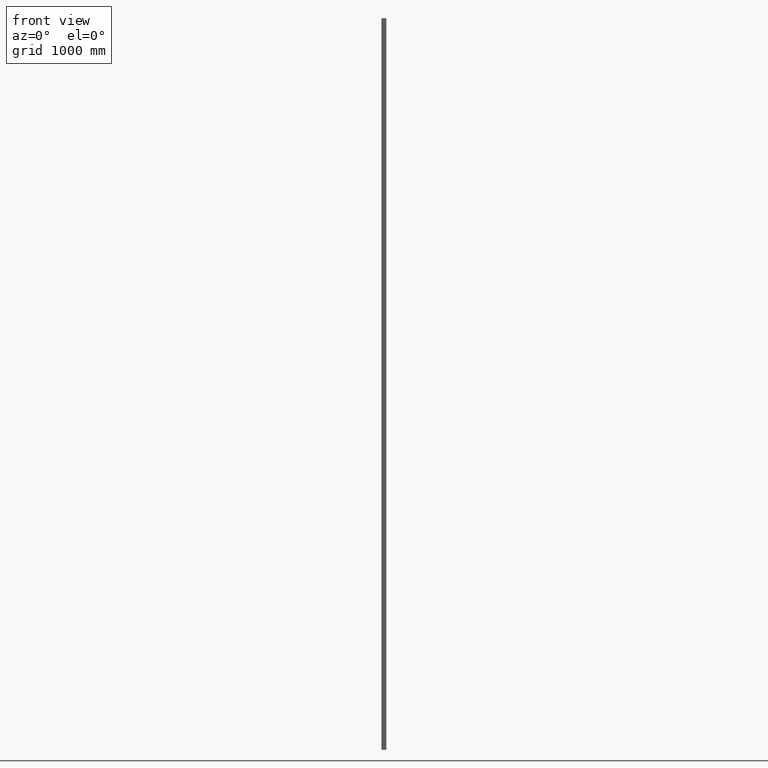
[diagram: clean part render]
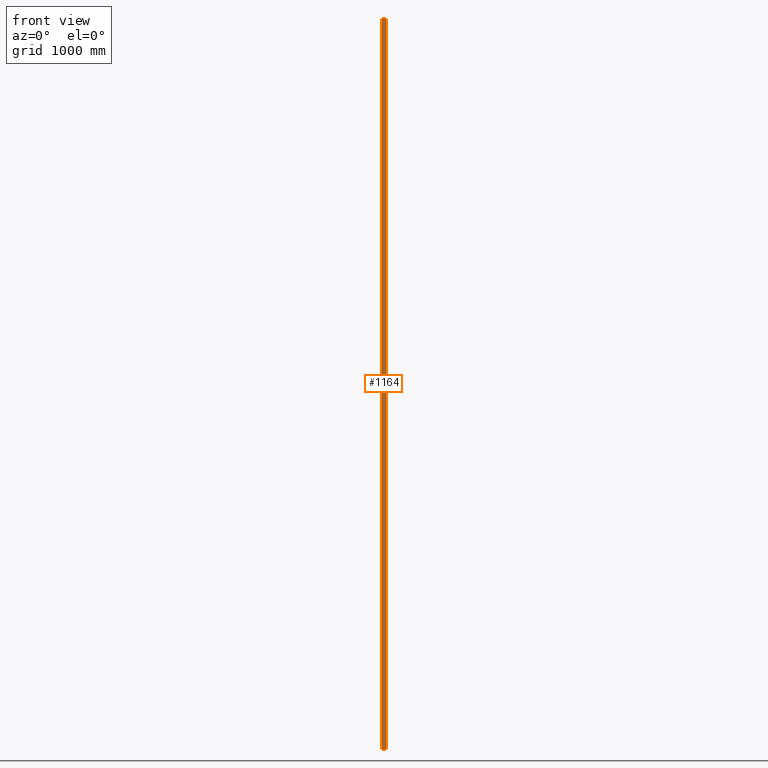
[diagram: same view with one face highlighted and labeled with its STEP entity id]
A machine part, front view. The second image highlights one B-rep face of the part: STEP entity #1164.
In plain terms, the highlighted planar face has unit normal (0, 1, -0).
Its self-contained STEP definition (entity closure, byte-faithful):
#895 = VERTEX_POINT ( 'NONE', #6147 ) ;
#1047 = LINE ( 'NONE', #8595, #7928 ) ;
#1164 = ADVANCED_FACE ( 'NONE', ( #3345 ), #12673, .F. ) ;
#1418 = VECTOR ( 'NONE', #4344, 1000.000000000000000 ) ;
#1791 = DIRECTION ( 'NONE',  ( -1.000000000000000000, 1.020425574104004122E-16, 0.000000000000000000 ) ) ;
#2044 = CARTESIAN_POINT ( 'NONE',  ( -16.99999999999999289, -20.00000000000000000, -3000.000000000000000 ) ) ;
#2084 = CARTESIAN_POINT ( 'NONE',  ( -16.99999999999999289, -20.00000000000000000, 3000.000000000000000 ) ) ;
#2161 = CARTESIAN_POINT ( 'NONE',  ( -16.99999999999999289, -20.00000000000000000, 3000.000000000000000 ) ) ;
#2600 = VERTEX_POINT ( 'NONE', #6311 ) ;
#3345 = FACE_OUTER_BOUND ( 'NONE', #10675, .T. ) ;
#4286 = DIRECTION ( 'NONE',  ( 1.000000000000000000, -1.020425574104004122E-16, 0.000000000000000000 ) ) ;
#4344 = DIRECTION ( 'NONE',  ( 1.000000000000000000, -1.020425574104004122E-16, 0.000000000000000000 ) ) ;
#6146 = DIRECTION ( 'NONE',  ( 1.020425574104004122E-16, 1.000000000000000000, -0.000000000000000000 ) ) ;
#6147 = CARTESIAN_POINT ( 'NONE',  ( 17.00000000000000355, -20.00000000000000355, 3000.000000000000000 ) ) ;
#6311 = CARTESIAN_POINT ( 'NONE',  ( -16.99999999999999289, -20.00000000000000000, 3000.000000000000000 ) ) ;
#6478 = VERTEX_POINT ( 'NONE', #11123 ) ;
#6810 = VERTEX_POINT ( 'NONE', #7158 ) ;
#7158 = CARTESIAN_POINT ( 'NONE',  ( -16.99999999999999289, -20.00000000000000000, -3000.000000000000000 ) ) ;
#7204 = CARTESIAN_POINT ( 'NONE',  ( -16.99999999999999289, -20.00000000000000000, 3000.000000000000000 ) ) ;
#7237 = LINE ( 'NONE', #2084, #9810 ) ;
#7383 = VECTOR ( 'NONE', #8800, 1000.000000000000000 ) ;
#7928 = VECTOR ( 'NONE', #14032, 1000.000000000000000 ) ;
#8595 = CARTESIAN_POINT ( 'NONE',  ( 17.00000000000000355, -20.00000000000000355, 3000.000000000000000 ) ) ;
#8800 = DIRECTION ( 'NONE',  ( -0.000000000000000000, -0.000000000000000000, -1.000000000000000000 ) ) ;
#8818 = ORIENTED_EDGE ( 'NONE', *, *, #10798, .T. ) ;
#8926 = LINE ( 'NONE', #2161, #7383 ) ;
#8976 = ORIENTED_EDGE ( 'NONE', *, *, #13731, .F. ) ;
#9055 = EDGE_CURVE ( 'NONE', #2600, #6810, #8926, .T. ) ;
#9493 = AXIS2_PLACEMENT_3D ( 'NONE', #7204, #6146, #1791 ) ;
#9507 = LINE ( 'NONE', #2044, #1418 ) ;
#9810 = VECTOR ( 'NONE', #4286, 1000.000000000000000 ) ;
#10675 = EDGE_LOOP ( 'NONE', ( #8818, #8976, #12240, #12009 ) ) ;
#10798 = EDGE_CURVE ( 'NONE', #6810, #6478, #9507, .T. ) ;
#11123 = CARTESIAN_POINT ( 'NONE',  ( 17.00000000000000355, -20.00000000000000355, -3000.000000000000000 ) ) ;
#12009 = ORIENTED_EDGE ( 'NONE', *, *, #9055, .T. ) ;
#12240 = ORIENTED_EDGE ( 'NONE', *, *, #13803, .F. ) ;
#12673 = PLANE ( 'NONE',  #9493 ) ;
#13731 = EDGE_CURVE ( 'NONE', #895, #6478, #1047, .T. ) ;
#13803 = EDGE_CURVE ( 'NONE', #2600, #895, #7237, .T. ) ;
#14032 = DIRECTION ( 'NONE',  ( -0.000000000000000000, -0.000000000000000000, -1.000000000000000000 ) ) ;